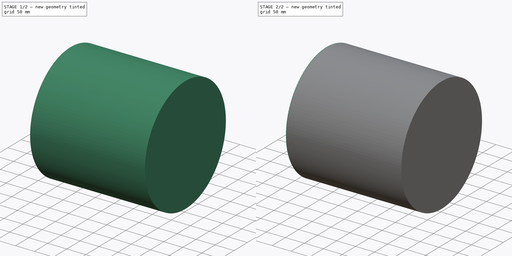
[diagram: build sequence overview — one tinted view per stage of 2, left to right]
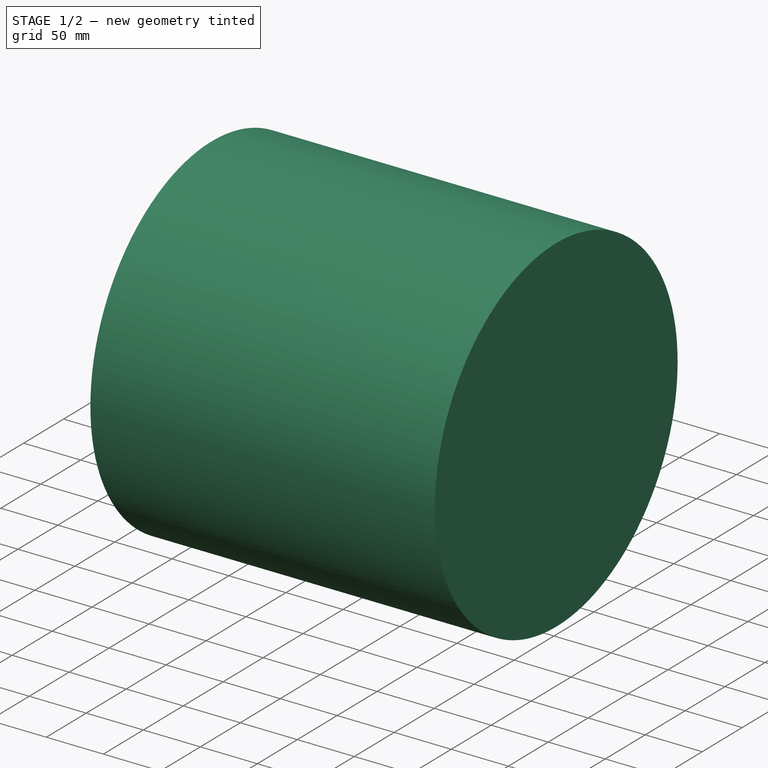
[diagram: stage 1 of 2 — iso view after this stage's code; geometry added in this stage tinted green]
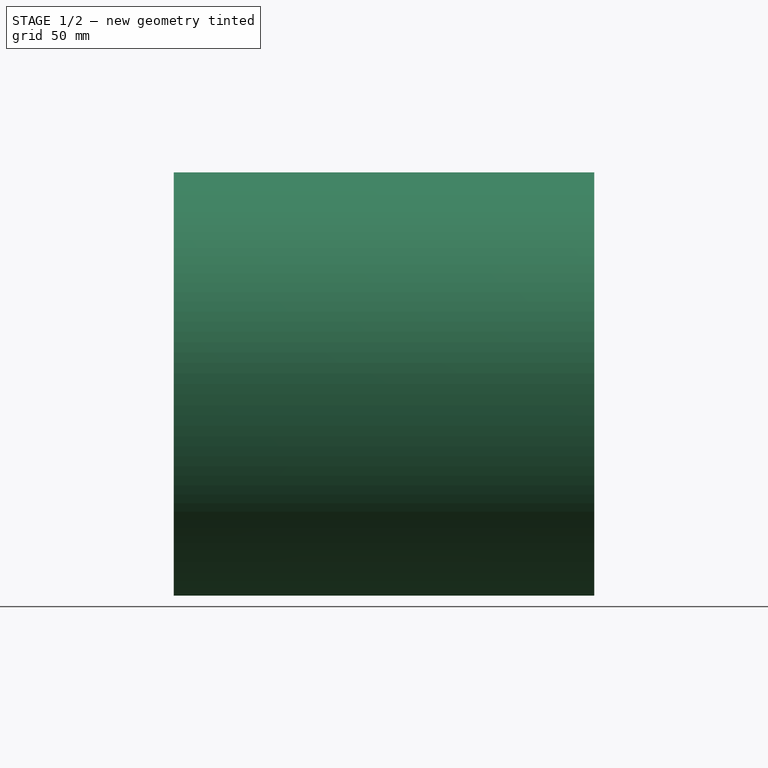
[diagram: stage 1 of 2 — front view after this stage's code; geometry added in this stage tinted green]
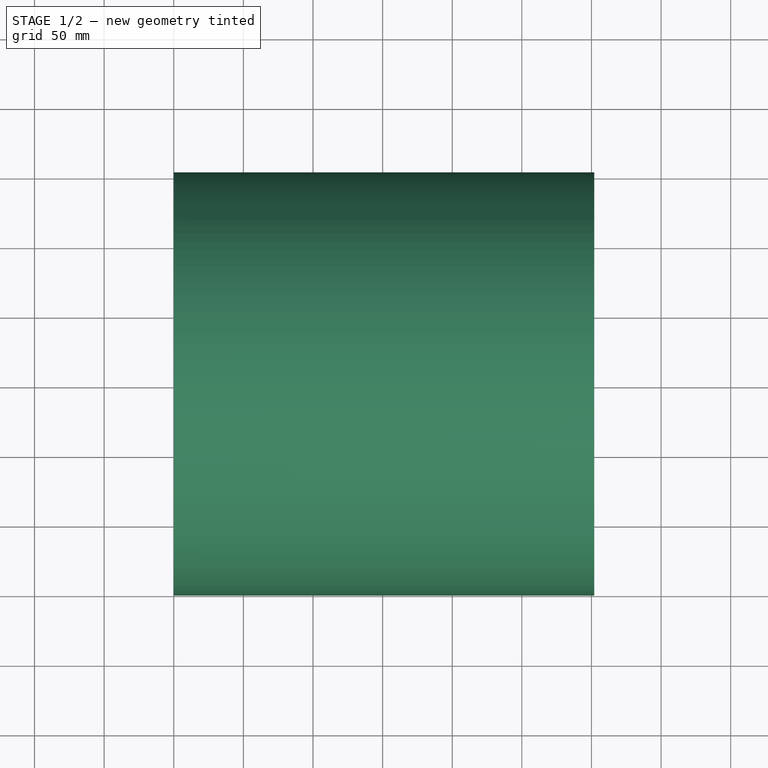
[diagram: stage 1 of 2 — top view after this stage's code; geometry added in this stage tinted green]
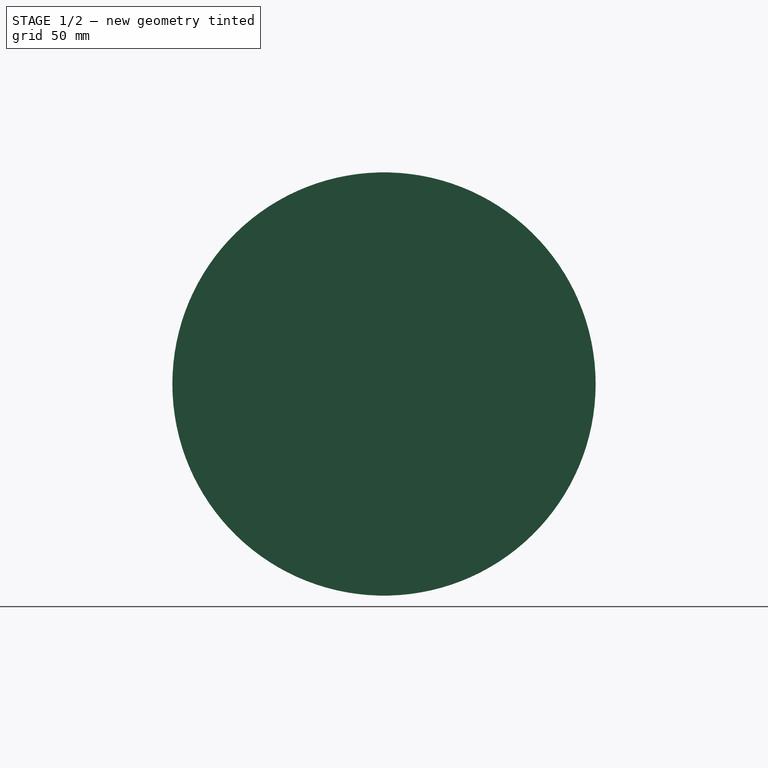
[diagram: stage 1 of 2 — right view after this stage's code; geometry added in this stage tinted green]
FCSTD DOCUMENT
Label: Ball_Mill
objects: Sketcher::SketchObject×3, PartDesign::Pad×3
note: 9 computed .brp shape members not serialized (recipe doc carries the construction recipe); baked Part::Feature solids carry a one-line shape summary decoded from their .brp

FEATURE [Sketcher::SketchObject] Sketch001
  Placement = pos=(150,0,0) rot=(0.57735,0.57735,0.57735;2.0944rad)
  sketch-geometry (1):
    g0: Circle CenterX=0 CenterY=0 CenterZ=0 NormalX=0 NormalY=0 NormalZ=1 Radius=152
  constraints (3):
    c: DistanceX(g0) = 0
    c: DistanceY(g0) = 0
    c: Radius(g0) = 152
FEATURE [PartDesign::Pad] Pad001
  Length = 2
  MirroredExtent = false
  Sketch = -> Sketch001
FEATURE [Sketcher::SketchObject] Sketch002
  Placement = pos=(-150,0,0) rot=(0.57735,0.57735,0.57735;2.0944rad)
  sketch-geometry (25):
    g0: ArcOfCircle CenterX=0 CenterY=0 CenterZ=0 NormalX=0 NormalY=0 NormalZ=1 Radius=150 StartAngle=1.60414 EndAngle=2.58465
    g1: Circle CenterX=0 CenterY=0 CenterZ=0 NormalX=0 NormalY=0 NormalZ=1 Radius=152
    g2: LineSegment StartX=-5 StartY=149.917 StartZ=0 EndX=-5 EndY=139.917 EndZ=0
    g3: LineSegment StartX=-5 StartY=139.917 StartZ=0 EndX=5 EndY=139.917 EndZ=0
    g4: LineSegment StartX=5 StartY=139.917 StartZ=0 EndX=5 EndY=149.917 EndZ=0
    g5: LineSegment StartX=-5 StartY=-149.917 StartZ=0 EndX=-5 EndY=-139.917 EndZ=0
    g6: LineSegment StartX=-5 StartY=-139.917 StartZ=0 EndX=5 EndY=-139.917 EndZ=0
    g7: LineSegment StartX=5 StartY=-139.917 StartZ=0 EndX=5 EndY=-149.917 EndZ=0
    g8: LineSegment StartX=118.671 StartY=74.2884 StartZ=0 EndX=127.332 EndY=79.2884 EndZ=0
    g9: LineSegment StartX=118.671 StartY=74.2884 StartZ=0 EndX=123.671 EndY=65.6282 EndZ=0
    g10: LineSegment StartX=123.671 StartY=65.6282 StartZ=0 EndX=132.332 EndY=70.6282 EndZ=0
    g11: LineSegment StartX=123.671 StartY=-65.6282 StartZ=0 EndX=132.332 EndY=-70.6282 EndZ=0
    g12: LineSegment StartX=123.671 StartY=-65.6282 StartZ=0 EndX=118.671 EndY=-74.2885 EndZ=0
    g13: LineSegment StartX=118.671 StartY=-74.2885 StartZ=0 EndX=127.332 EndY=-79.2885 EndZ=0
    g14: LineSegment StartX=-127.332 StartY=79.2884 StartZ=0 EndX=-118.671 EndY=74.2884 EndZ=0
    g15: LineSegment StartX=-118.671 StartY=74.2884 StartZ=0 EndX=-123.671 EndY=65.6282 EndZ=0
    g16: LineSegment StartX=-123.671 StartY=65.6282 StartZ=0 EndX=-132.332 EndY=70.6282 EndZ=0
    g17: LineSegment StartX=-123.671 StartY=-65.6282 StartZ=0 EndX=-132.332 EndY=-70.6282 EndZ=0
    g18: LineSegment StartX=-123.671 StartY=-65.6282 StartZ=0 EndX=-118.671 EndY=-74.2885 EndZ=0
    g19: LineSegment StartX=-118.671 StartY=-74.2885 StartZ=0 EndX=-127.332 EndY=-79.2885 EndZ=0
    g20: ArcOfCircle CenterX=0 CenterY=0 CenterZ=0 NormalX=0 NormalY=0 NormalZ=1 Radius=150 StartAngle=0.556938 EndAngle=1.53746
    g21: ArcOfCircle CenterX=0 CenterY=0 CenterZ=0 NormalX=0 NormalY=0 NormalZ=1 Radius=150 StartAngle=5.79293 EndAngle=6.77344
    g22: ArcOfCircle CenterX=0 CenterY=0 CenterZ=0 NormalX=0 NormalY=0 NormalZ=1 Radius=150 StartAngle=4.74573 EndAngle=5.72625
    g23: ArcOfCircle CenterX=0 CenterY=0 CenterZ=0 NormalX=0 NormalY=0 NormalZ=1 Radius=150 StartAngle=3.69853 EndAngle=4.67905
    g24: ArcOfCircle CenterX=0 CenterY=0 CenterZ=0 NormalX=0 NormalY=0 NormalZ=1 Radius=150 StartAngle=2.65133 EndAngle=3.63185
  constraints (75):
    c: DistanceX(g0) = 0
    c: DistanceY(g0) = 0
    c: Radius(g0) = 150
    c: Coincident(g1,g0)
    c: Radius(g1) = 152
    c: Vertical(g2)
    c: Coincident(g3,g2)
    c: Horizontal(g3)
    c: Coincident(g4,g3)
    c: Vertical(g4)
    c: Vertical(g5)
    c: Coincident(g6,g5)
    c: Horizontal(g6)
    c: Coincident(g7,g6)
    c: Vertical(g7)
    c: Coincident(g9,g8)
    c: Coincident(g10,g9)
    c: Coincident(g13,g12)
    c: Coincident(g12,g11)
    c: Coincident(g15,g14)
    c: Coincident(g16,g15)
    c: Coincident(g19,g18)
    c: Coincident(g18,g17)
    c: Parallel(g14,g16)
    c: Parallel(g19,g17)
    c: Parallel(g13,g11)
    c: Parallel(g10,g8)
    c: Equal(g10,g9)
    c: Equal(g9,g8)
    c: Equal(g11,g12)
    c: Equal(g12,g13)
    c: Equal(g16,g15)
    c: Equal(g15,g14)
    c: Equal(g17,g18)
    c: Equal(g19,g18)
    c: Equal(g2,g3)
    c: Equal(g3,g4)
    c: Equal(g5,g6)
    c: Equal(g6,g7)
    c: Equal(g16,g17)
    c: Equal(g17,g5)
    c: Equal(g5,g12)
    c: Equal(g12,g2)
    c: Equal(g2,g10)
    c: Angle(g14,g15) = 1.5708
    c: Angle(g10,g9) = 1.5708
    c: Angle(g17,g18) = 1.5708
    c: Angle(g13,g12) = 1.5708
    c: Angle(g3,g9) = 2.0944
    c: Angle(g9,g12) = 2.0944
    c: Angle(g15,g3) = 2.0944
    c: Angle(g18,g15) = 2.0944
    c: Coincident(g0,g2)
    c: Coincident(g20,g4)
    c: Equal(g0,g20)
    c: Coincident(g21,g10)
    c: Coincident(g20,g8)
    c: Coincident(g0,g20)
    c: Equal(g0,g21)
    c: Coincident(g22,g13)
    c: Coincident(g21,g11)
    c: Coincident(g0,g21)
    c: Equal(g0,g22)
    c: Coincident(g23,g5)
    c: Coincident(g22,g7)
    c: Coincident(g0,g22)
    c: Equal(g0,g23)
    c: Coincident(g24,g17)
    c: Coincident(g23,g19)
    c: Coincident(g0,g23)
    c: Equal(g0,g24)
    c: Coincident(g0,g14)
    c: Coincident(g24,g16)
    c: Coincident(g0,g24)
    c: Distance(g15) = 10
FEATURE [PartDesign::Pad] Pad002
  Length = 300
  MirroredExtent = false
  Sketch = -> Sketch002
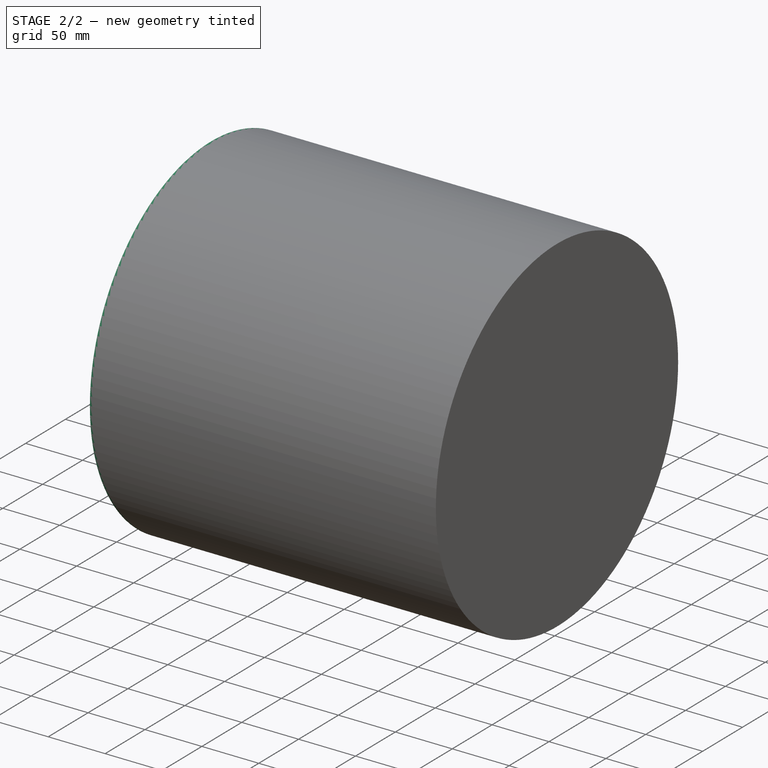
[diagram: stage 2 of 2 — iso view after this stage's code; geometry added in this stage tinted green]
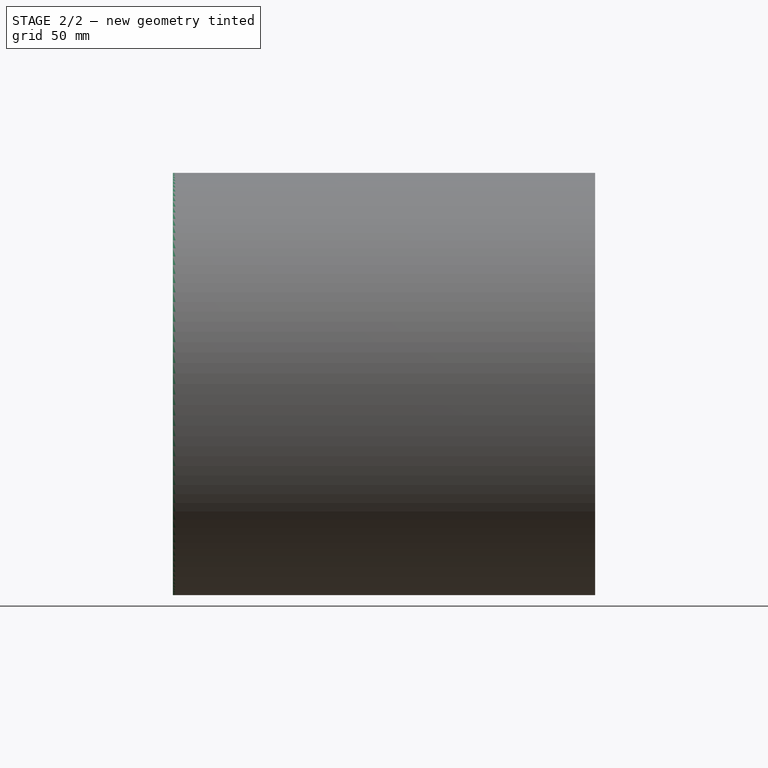
[diagram: stage 2 of 2 — front view after this stage's code; geometry added in this stage tinted green]
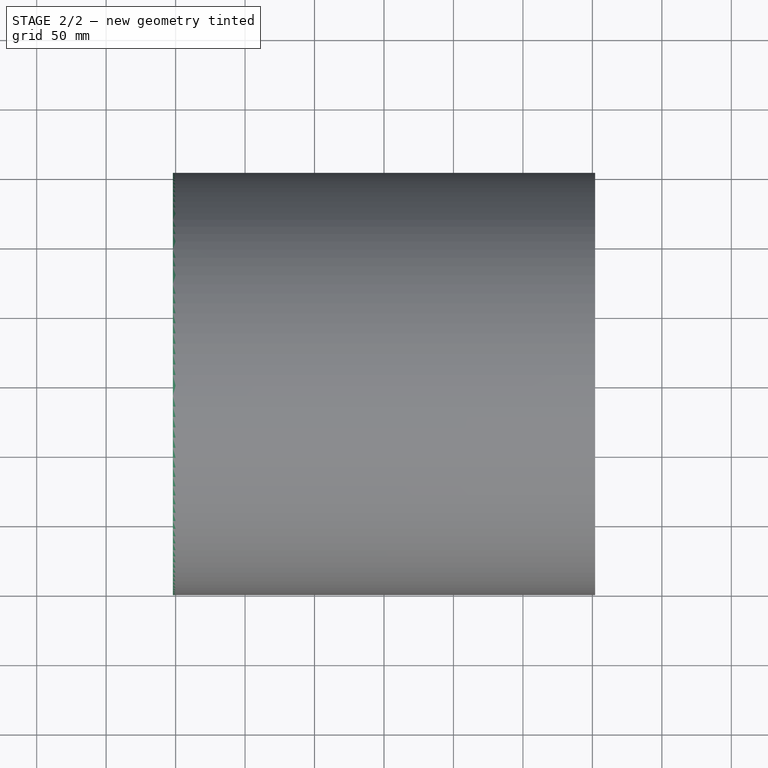
[diagram: stage 2 of 2 — top view after this stage's code; geometry added in this stage tinted green]
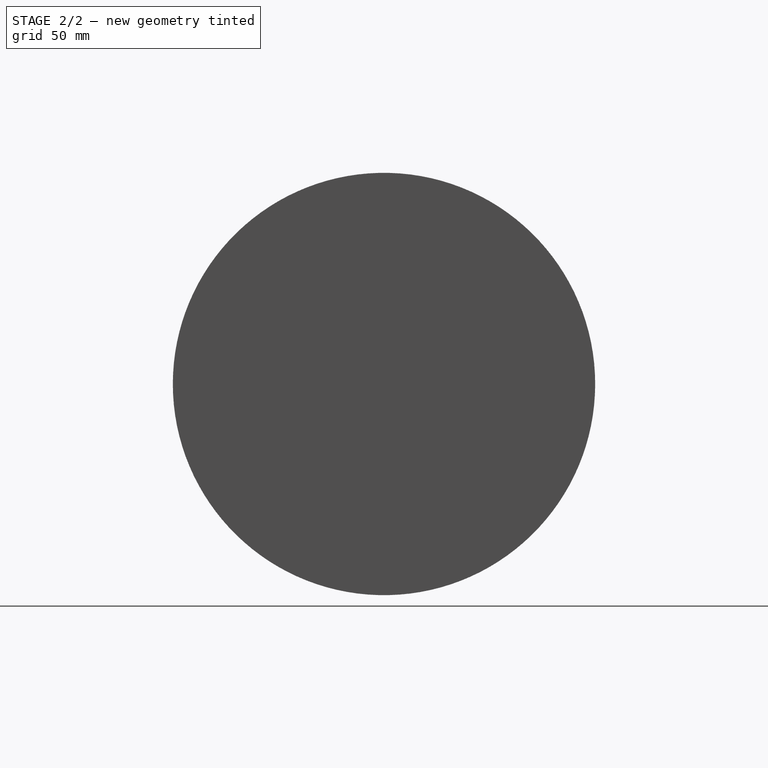
[diagram: stage 2 of 2 — right view after this stage's code; geometry added in this stage tinted green]
FEATURE [Sketcher::SketchObject] Sketch
  Placement = pos=(-150,0,0) rot=(0.57735,0.57735,0.57735;2.0944rad)
  sketch-geometry (1):
    g0: Circle CenterX=0 CenterY=0 CenterZ=0 NormalX=0 NormalY=0 NormalZ=1 Radius=152
  constraints (3):
    c: Radius(g0) = 152
    c: DistanceX(g0) = 0
    c: DistanceY(g0) = 0
FEATURE [PartDesign::Pad] Pad
  Length = 2
  MirroredExtent = false
  Reversed = true
  Sketch = -> Sketch
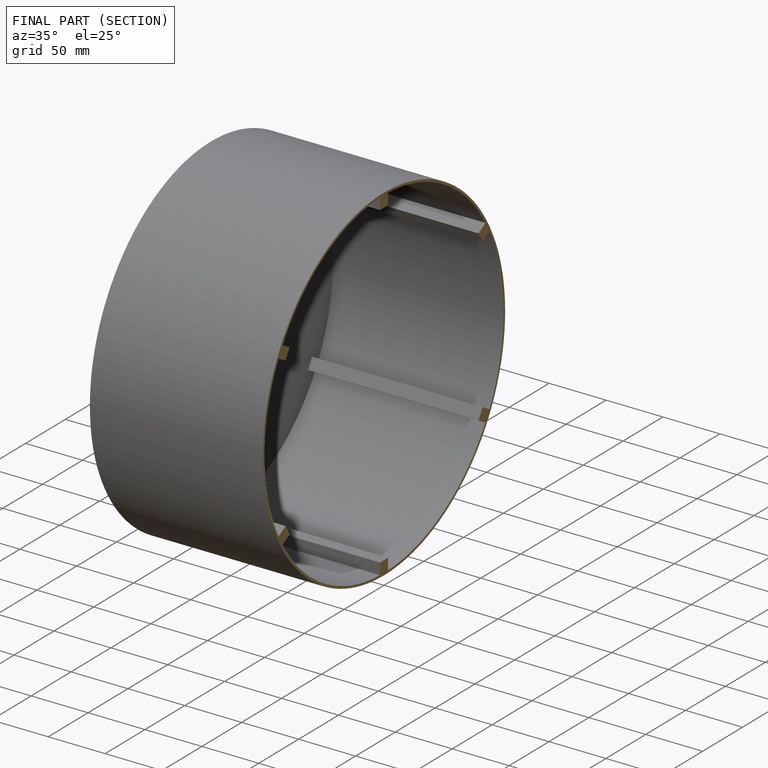
[diagram: finished part — half-section view (interior)]
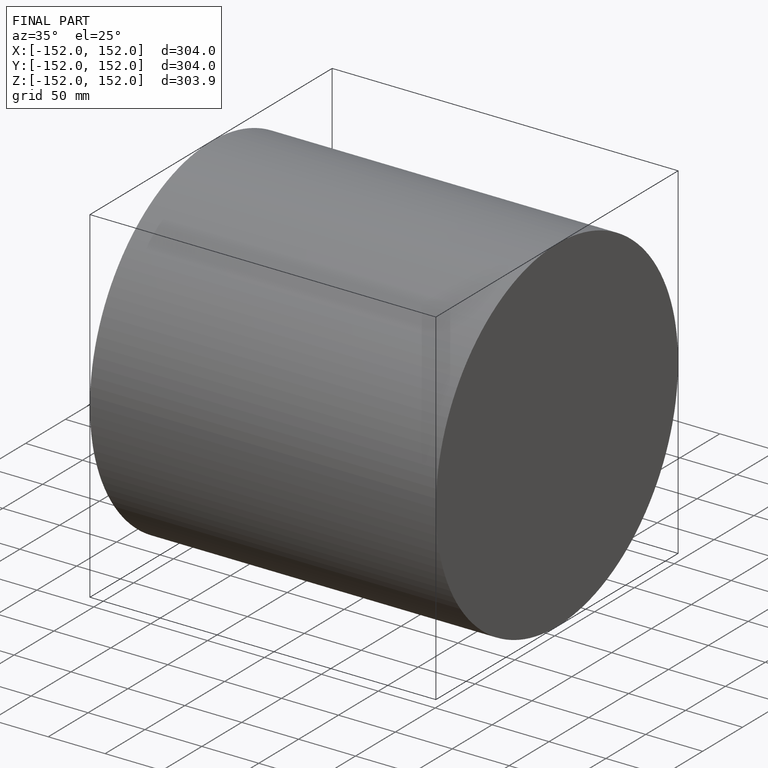
[diagram: finished part — iso view with bounding-box wireframe]
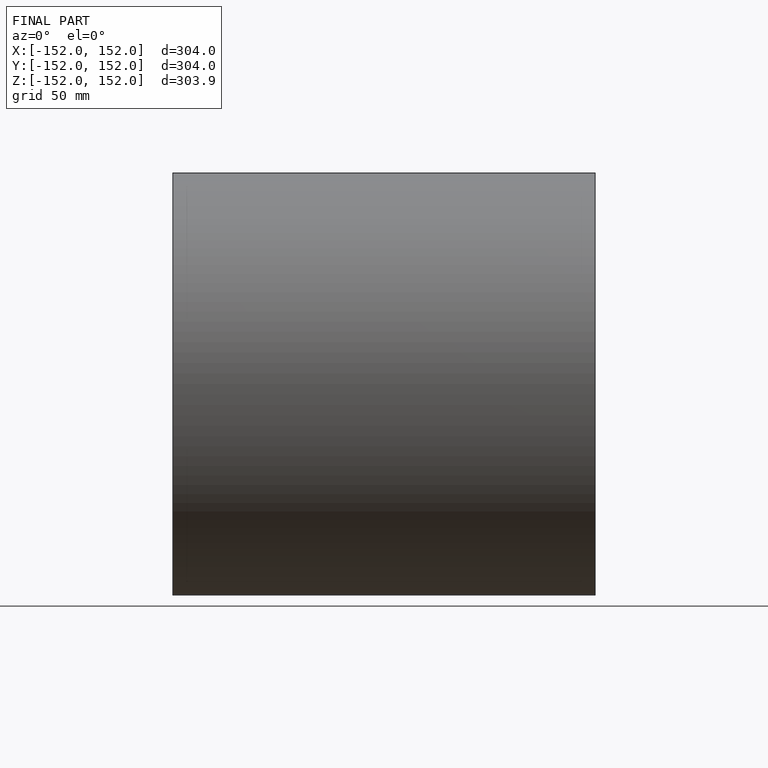
[diagram: finished part — front view with bounding-box wireframe]
